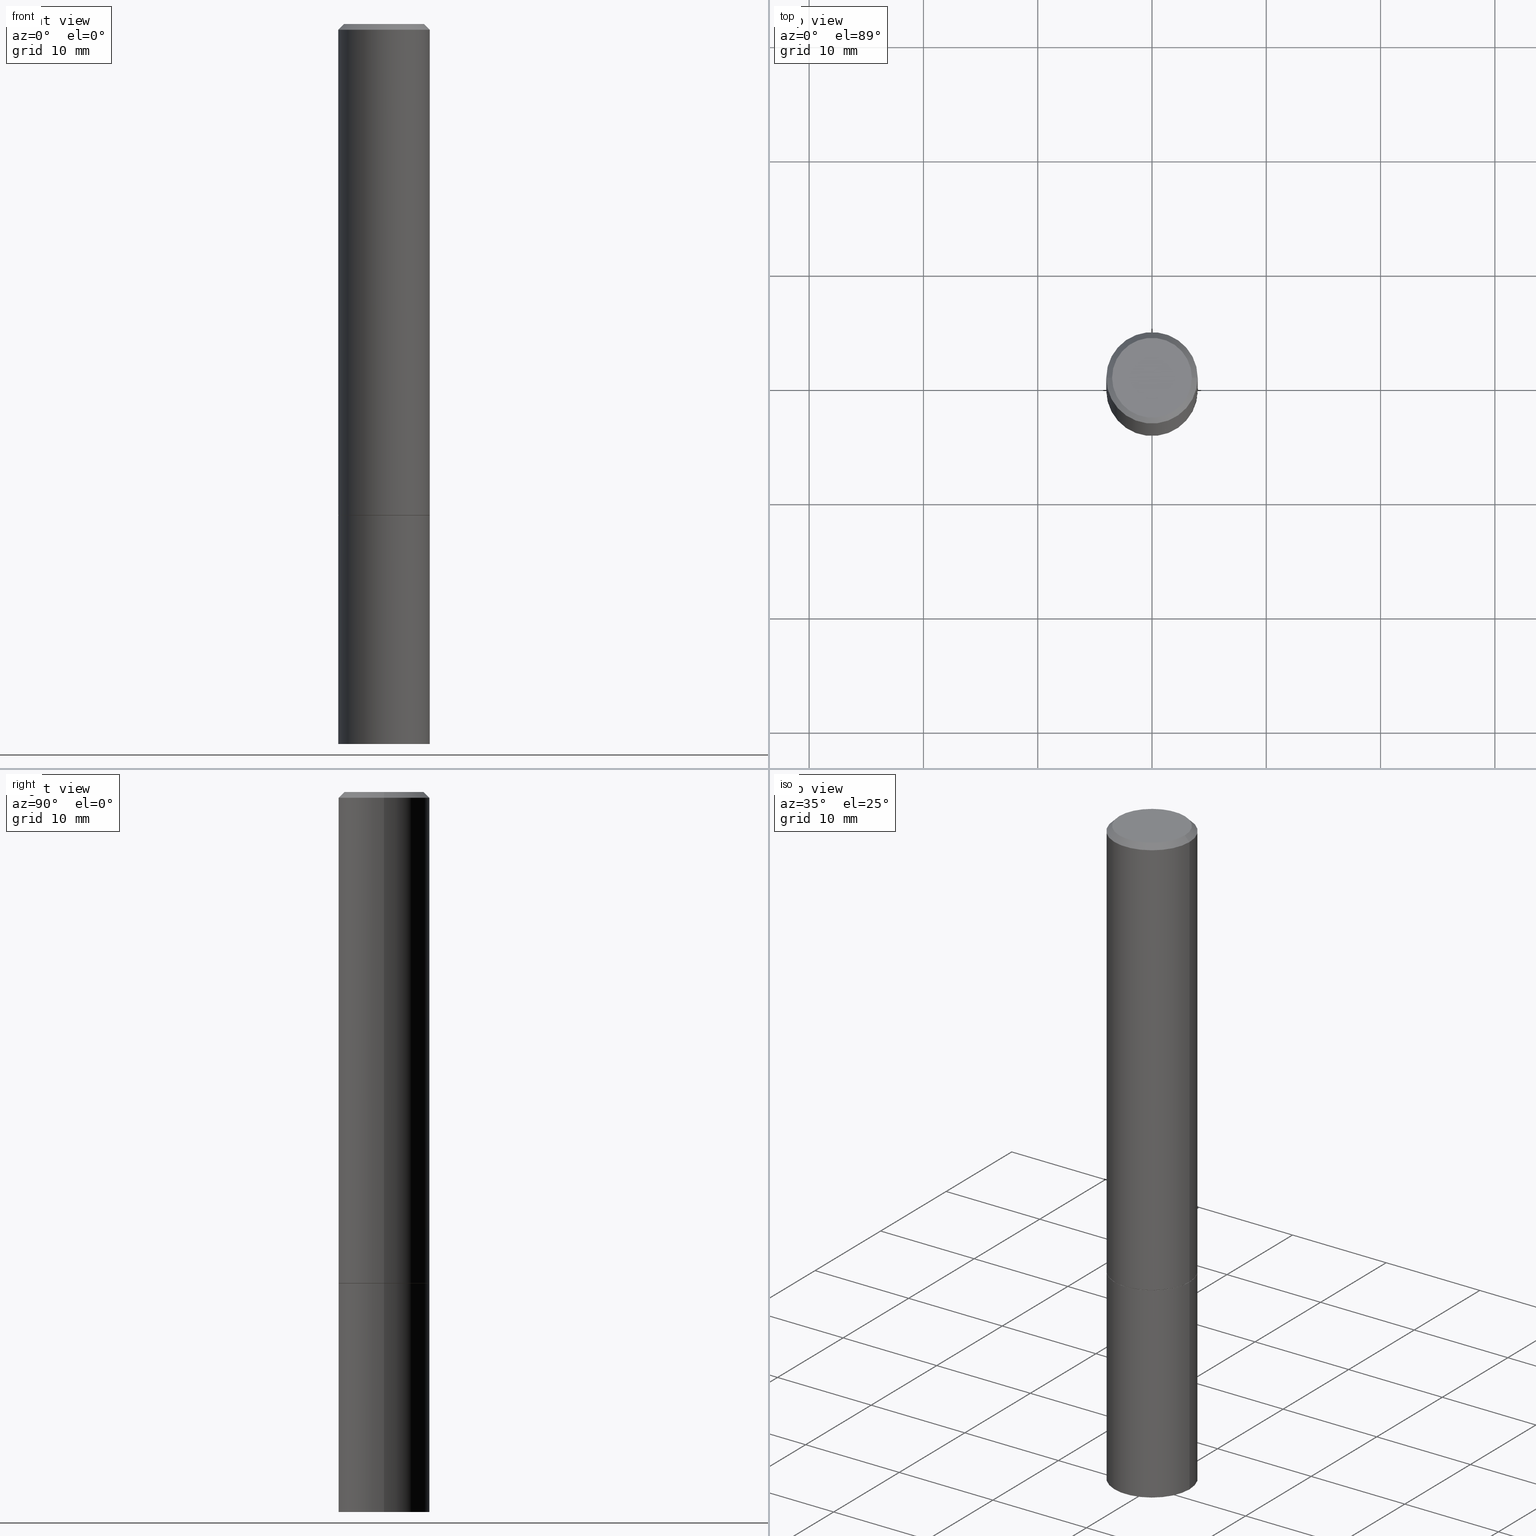
[diagram: canonical four-view strip — front | top / right | iso, engineering-drawing reading convention]
A machine part, canonical four-view strip (front | top / right | iso — engineering-drawing reading convention). The complete STEP part file that produces these views, byte-faithful:
ISO-10303-21;
HEADER;
FILE_DESCRIPTION (( 'STEP AP203' ),
    '1' );
FILE_NAME ('48511.STEP',
    '2024-02-28T11:20:03',
    ( '' ),
    ( '' ),
    'SwSTEP 2.0',
    'SolidWorks 2023',
    '' );
FILE_SCHEMA (( 'CONFIG_CONTROL_DESIGN' ));
ENDSEC;

DATA;
#1 = LINE ( 'NONE', #113, #77 ) ;
#2 = DIMENSIONAL_EXPONENTS ( 1.000000000000000000, 0.000000000000000000, 0.000000000000000000, 0.000000000000000000, 0.000000000000000000, 0.000000000000000000, 0.000000000000000000 ) ;
#3 = DATE_AND_TIME ( #335, #216 ) ;
#4 = UNCERTAINTY_MEASURE_WITH_UNIT (LENGTH_MEASURE( 1.000000000000000082E-05 ), #47, 'distance_accuracy_value', 'NONE');
#5 = CLOSED_SHELL ( 'NONE', ( #317, #245, #254, #306 ) ) ;
#6 = VECTOR ( 'NONE', #105, 39.37007874015748143 ) ;
#7 = CC_DESIGN_DATE_AND_TIME_ASSIGNMENT ( #310, #203, ( #104 ) ) ;
#8 = FACE_OUTER_BOUND ( 'NONE', #206, .T. ) ;
#9 = DIRECTION ( 'NONE',  ( -2.445468806185136597E-29, 3.491481338843145583E-15, 1.000000000000000000 ) ) ;
#10 = EDGE_CURVE ( 'NONE', #230, #295, #103, .T. ) ;
#11 = VECTOR ( 'NONE', #270, 39.37007874015748143 ) ;
#12 = LINE ( 'NONE', #182, #6 ) ;
#13 = CARTESIAN_POINT ( 'NONE',  ( 4.139934141990818918E-29, -5.910728758527562653E-15, -1.692900000000000293 ) ) ;
#14 = ADVANCED_BREP_SHAPE_REPRESENTATION ( '48511', ( #126, #122, #327 ), #301 ) ;
#15 = EDGE_CURVE ( 'NONE', #133, #358, #339, .T. ) ;
#16 = DIRECTION ( 'NONE',  ( -1.000000000000000000, 6.982962677686265922E-15, -4.876176775795935793E-29 ) ) ;
#17 = ORIENTED_EDGE ( 'NONE', *, *, #267, .T. ) ;
#18 = CIRCLE ( 'NONE', #221, 0.1374999999999998446 ) ;
#19 = PRODUCT_DEFINITION ( 'UNKNOWN', '', #205, #78 ) ;
#20 = VECTOR ( 'NONE', #265, 39.37007874015748143 ) ;
#21 = CARTESIAN_POINT ( 'NONE',  ( 9.601573681818602922E-16, 0.1374999999999998446, -4.779444278458817077E-16 ) ) ;
#22 = CARTESIAN_POINT ( 'NONE',  ( 0.1575000000000000011, -1.099816621735586889E-15, 7.679978421878598033E-30 ) ) ;
#23 = DIRECTION ( 'NONE',  ( 1.000000000000000000, -6.982962677686265922E-15, 4.876176775795935232E-29 ) ) ;
#24 = ORIENTED_EDGE ( 'NONE', *, *, #51, .F. ) ;
#25 = EDGE_CURVE ( 'NONE', #61, #312, #55, .T. ) ;
#26 = EDGE_CURVE ( 'NONE', #131, #242, #188, .T. ) ;
#27 =( NAMED_UNIT ( * ) SI_UNIT ( $, .STERADIAN. ) SOLID_ANGLE_UNIT ( ) );
#28 = EDGE_LOOP ( 'NONE', ( #74, #181, #363, #330 ) ) ;
#29 = CC_DESIGN_APPROVAL ( #320, ( #19 ) ) ;
#30 = ORIENTED_EDGE ( 'NONE', *, *, #274, .F. ) ;
#31 = COORDINATED_UNIVERSAL_TIME_OFFSET ( 5, 0, .BEHIND. ) ;
#32 = CARTESIAN_POINT ( 'NONE',  ( 4.890937612370279289E-31, -6.982962677686299005E-17, -0.02000000000000002470 ) ) ;
#33 = APPROVAL_DATE_TIME ( #202, #238 ) ;
#34 = DIRECTION ( 'NONE',  ( -2.445468806185136597E-29, 3.491481338843145583E-15, 1.000000000000000000 ) ) ;
#35 = AXIS2_PLACEMENT_3D ( 'NONE', #286, #83, #37 ) ;
#36 = CARTESIAN_POINT ( 'NONE',  ( 4.890937612370279289E-31, -6.982962677686299005E-17, -0.02000000000000002470 ) ) ;
#37 = DIRECTION ( 'NONE',  ( 1.000000000000000000, -6.982962677686265922E-15, 0.000000000000000000 ) ) ;
#38 = FACE_OUTER_BOUND ( 'NONE', #127, .T. ) ;
#39 = AXIS2_PLACEMENT_3D ( 'NONE', #40, #102, #154 ) ;
#40 = CARTESIAN_POINT ( 'NONE',  ( 1.099816621735647434E-15, 0.1574999999999913136, -2.480300000000001059 ) ) ;
#41 = LINE ( 'NONE', #184, #223 ) ;
#42 = CARTESIAN_POINT ( 'NONE',  ( 1.099816621735628304E-15, 0.1574999999999940892, -1.692900000000000960 ) ) ;
#43 = ORIENTED_EDGE ( 'NONE', *, *, #117, .F. ) ;
#44 = APPROVAL_PERSON_ORGANIZATION ( #232, #343, #260 ) ;
#45 = DIRECTION ( 'NONE',  ( -2.445468806185136597E-29, 3.491481338843145583E-15, 1.000000000000000000 ) ) ;
#46 = ORIENTED_EDGE ( 'NONE', *, *, #267, .F. ) ;
#47 =( CONVERSION_BASED_UNIT ( 'INCH', #251 ) LENGTH_UNIT ( ) NAMED_UNIT ( #2 ) );
#48 = ORIENTED_EDGE ( 'NONE', *, *, #25, .T. ) ;
#49 = CARTESIAN_POINT ( 'NONE',  ( 0.000000000000000000, 0.000000000000000000, 0.000000000000000000 ) ) ;
#50 = CC_DESIGN_APPROVAL ( #238, ( #104 ) ) ;
#51 = EDGE_CURVE ( 'NONE', #242, #131, #97, .T. ) ;
#52 = APPROVAL_STATUS ( 'not_yet_approved' ) ;
#53 = FACE_OUTER_BOUND ( 'NONE', #299, .T. ) ;
#54 = PERSON_AND_ORGANIZATION ( #304, #333 ) ;
#55 = CIRCLE ( 'NONE', #256, 0.1575000000000000011 ) ;
#56 = LOCAL_TIME ( 6, 20, 3.000000000000000000, #337 ) ;
#57 = CALENDAR_DATE ( 2024, 28, 2 ) ;
#58 = COORDINATED_UNIVERSAL_TIME_OFFSET ( 5, 0, .BEHIND. ) ;
#59 = CONICAL_SURFACE ( 'NONE', #240, 0.1565000000000000002, 0.7853981633972775267 ) ;
#60 = DIRECTION ( 'NONE',  ( 2.445468806185136597E-29, -3.491481338843145583E-15, -1.000000000000000000 ) ) ;
#61 = VERTEX_POINT ( 'NONE', #148 ) ;
#62 = DIRECTION ( 'NONE',  ( -1.000000000000000000, 6.982962677686265922E-15, -4.876176775795935793E-29 ) ) ;
#63 = ORIENTED_EDGE ( 'NONE', *, *, #273, .F. ) ;
#64 = AXIS2_PLACEMENT_3D ( 'NONE', #261, #231, #89 ) ;
#65 = CARTESIAN_POINT ( 'NONE',  ( 0.1574999999999998901, -1.099816621735586297E-15, 7.679978421878593829E-30 ) ) ;
#66 = CC_DESIGN_PERSON_AND_ORGANIZATION_ASSIGNMENT ( #171, #228, ( #19 ) ) ;
#67 = CARTESIAN_POINT ( 'NONE',  ( 0.1374999999999998446, -1.046838268059731308E-15, 4.268512490107428597E-18 ) ) ;
#68 = EDGE_LOOP ( 'NONE', ( #129, #347, #282, #30 ) ) ;
#69 = CARTESIAN_POINT ( 'NONE',  ( -0.1374999999999998446, 9.950721815702915469E-16, 4.268512490093574228E-18 ) ) ;
#70 = AXIS2_PLACEMENT_3D ( 'NONE', #259, #9, #315 ) ;
#71 = AXIS2_PLACEMENT_3D ( 'NONE', #218, #72, #23 ) ;
#72 = DIRECTION ( 'NONE',  ( -2.445468806185136597E-29, 3.491481338843145583E-15, 1.000000000000000000 ) ) ;
#73 = DIRECTION ( 'NONE',  ( -2.445468806185136597E-29, 3.491481338843145583E-15, 1.000000000000000000 ) ) ;
#74 = ORIENTED_EDGE ( 'NONE', *, *, #168, .F. ) ;
#75 = DIRECTION ( 'NONE',  ( 1.000000000000000000, -6.982962677686265922E-15, 4.876176775795935232E-29 ) ) ;
#76 = PERSON_AND_ORGANIZATION_ROLE ( 'design_owner' ) ;
#77 = VECTOR ( 'NONE', #199, 39.37007874015748143 ) ;
#78 = DESIGN_CONTEXT ( 'detailed design', #342, 'design' ) ;
#79 = CARTESIAN_POINT ( 'NONE',  ( 4.139934141990818918E-29, -5.910728758527562653E-15, -1.692900000000000293 ) ) ;
#80 = SECURITY_CLASSIFICATION_LEVEL ( 'unclassified' ) ;
#81 = VERTEX_POINT ( 'NONE', #280 ) ;
#82 = EDGE_CURVE ( 'NONE', #133, #312, #118, .T. ) ;
#83 = DIRECTION ( 'NONE',  ( -2.445468806185136597E-29, 3.491481338843145583E-15, 1.000000000000000000 ) ) ;
#84 = LOCAL_TIME ( 6, 20, 3.000000000000000000, #31 ) ;
#85 = ORIENTED_EDGE ( 'NONE', *, *, #200, .F. ) ;
#86 = DIRECTION ( 'NONE',  ( -2.445468806185136877E-29, 3.491481338843145188E-15, 1.000000000000000000 ) ) ;
#87 = ADVANCED_FACE ( 'NONE', ( #285 ), #165, .T. ) ;
#88 = COORDINATED_UNIVERSAL_TIME_OFFSET ( 5, 0, .BEHIND. ) ;
#89 = DIRECTION ( 'NONE',  ( 1.000000000000000000, -6.982962677686261977E-15, 0.000000000000000000 ) ) ;
#90 = ORIENTED_EDGE ( 'NONE', *, *, #168, .T. ) ;
#91 = LINE ( 'NONE', #326, #20 ) ;
#92 = ORIENTED_EDGE ( 'NONE', *, *, #341, .T. ) ;
#93 = ADVANCED_FACE ( 'NONE', ( #8 ), #149, .T. ) ;
#94 = CYLINDRICAL_SURFACE ( 'NONE', #198, 0.1574999999999998901 ) ;
#95 = ORIENTED_EDGE ( 'NONE', *, *, #82, .F. ) ;
#96 = PRODUCT_DEFINITION_SHAPE ( 'NONE', 'NONE',  #19 ) ;
#97 = CIRCLE ( 'NONE', #277, 0.1575000000000000011 ) ;
#98 = CARTESIAN_POINT ( 'NONE',  ( -0.1574999999999998346, 1.029986994958722802E-15, -0.02000000000000002470 ) ) ;
#99 = ORIENTED_EDGE ( 'NONE', *, *, #191, .F. ) ;
#100 = DIRECTION ( 'NONE',  ( -0.7071067811865469066, 2.468850131082249961E-15, -0.7071067811865482389 ) ) ;
#101 = EDGE_CURVE ( 'NONE', #295, #230, #239, .T. ) ;
#102 = DIRECTION ( 'NONE',  ( 2.438088387897960049E-29, -3.491481338843145188E-15, -1.000000000000000000 ) ) ;
#103 = CIRCLE ( 'NONE', #210, 0.1574999999999998346 ) ;
#104 = SECURITY_CLASSIFICATION ( '', '', #80 ) ;
#105 = DIRECTION ( 'NONE',  ( 0.7071067811865469066, -7.319954787623254468E-15, -0.7071067811865482389 ) ) ;
#106 = EDGE_LOOP ( 'NONE', ( #269, #90 ) ) ;
#107 = DIRECTION ( 'NONE',  ( 1.000000000000000000, 0.000000000000000000, 0.000000000000000000 ) ) ;
#108 = DIRECTION ( 'NONE',  ( -2.445468806185136597E-29, 3.491481338843145583E-15, 1.000000000000000000 ) ) ;
#109 = AXIS2_PLACEMENT_3D ( 'NONE', #21, #287, #62 ) ;
#110 = CARTESIAN_POINT ( 'NONE',  ( 6.065496279980994755E-29, -8.659921164732655335E-15, -2.480300000000000171 ) ) ;
#111 = VECTOR ( 'NONE', #209, 39.37007874015748143 ) ;
#112 = CARTESIAN_POINT ( 'NONE',  ( 4.139934141990818918E-29, -5.910728758527562653E-15, -1.692900000000000293 ) ) ;
#113 = CARTESIAN_POINT ( 'NONE',  ( -0.1574999999999998901, 1.119104808822157012E-15, -7.747322767151471379E-30 ) ) ;
#114 = CC_DESIGN_PERSON_AND_ORGANIZATION_ASSIGNMENT ( #54, #197, ( #205 ) ) ;
#115 = CALENDAR_DATE ( 2024, 28, 2 ) ;
#116 = PERSON_AND_ORGANIZATION_ROLE ( 'creator' ) ;
#117 = EDGE_CURVE ( 'NONE', #242, #230, #1, .T. ) ;
#118 = LINE ( 'NONE', #344, #351 ) ;
#119 = DATE_AND_TIME ( #146, #247 ) ;
#120 = VERTEX_POINT ( 'NONE', #69 ) ;
#121 = COORDINATED_UNIVERSAL_TIME_OFFSET ( 5, 0, .BEHIND. ) ;
#122 = MANIFOLD_SOLID_BREP ( 'Body-Move/Copy2[2]', #288 ) ;
#123 = AXIS2_PLACEMENT_3D ( 'NONE', #112, #195, #224 ) ;
#124 = PLANE ( 'NONE',  #109 ) ;
#125 = LINE ( 'NONE', #22, #174 ) ;
#126 = MANIFOLD_SOLID_BREP ( 'Body-Move/Copy2[1]', #5 ) ;
#127 = EDGE_LOOP ( 'NONE', ( #43, #360, #316, #185 ) ) ;
#128 = CARTESIAN_POINT ( 'NONE',  ( 0.000000000000000000, 0.000000000000000000, 0.000000000000000000 ) ) ;
#129 = ORIENTED_EDGE ( 'NONE', *, *, #26, .T. ) ;
#130 = CARTESIAN_POINT ( 'NONE',  ( -0.1575000000000000011, -1.869428643160630319E-15, -1.691899999999999959 ) ) ;
#131 = VERTEX_POINT ( 'NONE', #325 ) ;
#132 = CARTESIAN_POINT ( 'NONE',  ( -1.043851414335219820E-46, 1.490343170380447200E-32, 4.268512490100411279E-18 ) ) ;
#133 = VERTEX_POINT ( 'NONE', #186 ) ;
#134 = FACE_OUTER_BOUND ( 'NONE', #142, .T. ) ;
#135 = CARTESIAN_POINT ( 'NONE',  ( 4.139934141990818918E-29, -5.910728758527562653E-15, -1.692900000000000293 ) ) ;
#136 = VERTEX_POINT ( 'NONE', #67 ) ;
#137 = PRODUCT_RELATED_PRODUCT_CATEGORY ( 'detail', '', ( #145 ) ) ;
#138 = CYLINDRICAL_SURFACE ( 'NONE', #71, 0.1575000000000000011 ) ;
#139 = CARTESIAN_POINT ( 'NONE',  ( 0.1574999999999998346, -1.150358061425878091E-15, -0.02000000000000002470 ) ) ;
#140 = CARTESIAN_POINT ( 'NONE',  ( 0.000000000000000000, 0.000000000000000000, 0.000000000000000000 ) ) ;
#141 = APPROVAL_PERSON_ORGANIZATION ( #302, #320, #276 ) ;
#142 = EDGE_LOOP ( 'NONE', ( #266, #271, #305, #187 ) ) ;
#143 = APPROVAL_ROLE ( '' ) ;
#144 = DIRECTION ( 'NONE',  ( -1.000000000000000000, 6.982962677686265922E-15, 0.000000000000000000 ) ) ;
#145 = PRODUCT ( '48511', '48511', '', ( #364 ) ) ;
#146 = CALENDAR_DATE ( 2024, 28, 2 ) ;
#147 = DIRECTION ( 'NONE',  ( 1.000000000000000000, -6.982962677686268288E-15, 0.000000000000000000 ) ) ;
#148 = CARTESIAN_POINT ( 'NONE',  ( 0.1575000000000000011, -7.010545380263150133E-15, -1.692900000000000293 ) ) ;
#149 = CONICAL_SURFACE ( 'NONE', #262, 0.1574999999999998346, 0.7853981633974473908 ) ;
#150 = DIRECTION ( 'NONE',  ( 2.445468806185136597E-29, -3.491481338843145583E-15, -1.000000000000000000 ) ) ;
#151 = DIRECTION ( 'NONE',  ( 1.000000000000000000, -6.982962677686268288E-15, 0.000000000000000000 ) ) ;
#152 = EDGE_CURVE ( 'NONE', #358, #61, #125, .T. ) ;
#153 = APPROVAL_PERSON_ORGANIZATION ( #196, #238, #143 ) ;
#154 = DIRECTION ( 'NONE',  ( -1.000000000000000000, 6.982962677686265922E-15, -4.876176775795935793E-29 ) ) ;
#155 = DIRECTION ( 'NONE',  ( -2.445468806185136877E-29, 3.491481338843145188E-15, 1.000000000000000000 ) ) ;
#156 = EDGE_LOOP ( 'NONE', ( #170, #355 ) ) ;
#157 = DIRECTION ( 'NONE',  ( -2.445468806185136597E-29, 3.491481338843145583E-15, 1.000000000000000000 ) ) ;
#158 = AXIS2_PLACEMENT_3D ( 'NONE', #140, #329, #75 ) ;
#159 = DIRECTION ( 'NONE',  ( 2.438088387897960049E-29, -3.491481338843145188E-15, -1.000000000000000000 ) ) ;
#160 = PLANE ( 'NONE',  #123 ) ;
#161 = EDGE_CURVE ( 'NONE', #292, #81, #332, .T. ) ;
#162 = CARTESIAN_POINT ( 'NONE',  ( 0.1565000000000000002, -7.003562417585463330E-15, -1.692900000000000293 ) ) ;
#163 = FACE_OUTER_BOUND ( 'NONE', #309, .T. ) ;
#164 = FACE_OUTER_BOUND ( 'NONE', #234, .T. ) ;
#165 = CONICAL_SURFACE ( 'NONE', #300, 0.1574999999999998346, 0.7853981633974473908 ) ;
#166 = APPROVAL_STATUS ( 'not_yet_approved' ) ;
#167 = ORIENTED_EDGE ( 'NONE', *, *, #258, .T. ) ;
#168 = EDGE_CURVE ( 'NONE', #136, #120, #18, .T. ) ;
#169 = PERSON_AND_ORGANIZATION ( #304, #333 ) ;
#170 = ORIENTED_EDGE ( 'NONE', *, *, #341, .F. ) ;
#171 = PERSON_AND_ORGANIZATION ( #304, #333 ) ;
#172 = AXIS2_PLACEMENT_3D ( 'NONE', #323, #297, #214 ) ;
#173 = DIRECTION ( 'NONE',  ( 1.000000000000000000, -6.982962677686268288E-15, 0.000000000000000000 ) ) ;
#174 = VECTOR ( 'NONE', #155, 39.37007874015748143 ) ;
#175 = CC_DESIGN_APPROVAL ( #343, ( #205 ) ) ;
#176 = APPROVAL_STATUS ( 'not_yet_approved' ) ;
#177 = DIRECTION ( 'NONE',  ( -1.000000000000000000, 6.982962677686265922E-15, 0.000000000000000000 ) ) ;
#178 = DIRECTION ( 'NONE',  ( -2.445468806185136597E-29, 3.491481338843145583E-15, 1.000000000000000000 ) ) ;
#179 = CC_DESIGN_PERSON_AND_ORGANIZATION_ASSIGNMENT ( #169, #340, ( #104 ) ) ;
#180 = DIRECTION ( 'NONE',  ( -2.445468806185136597E-29, 3.491481338843145583E-15, 1.000000000000000000 ) ) ;
#181 = ORIENTED_EDGE ( 'NONE', *, *, #291, .T. ) ;
#182 = CARTESIAN_POINT ( 'NONE',  ( 0.1574999999999998346, -1.150358061425878091E-15, -0.02000000000000002470 ) ) ;
#183 = ADVANCED_FACE ( 'NONE', ( #352 ), #124, .F. ) ;
#184 = CARTESIAN_POINT ( 'NONE',  ( -0.1574999999999998346, 1.029986994958722802E-15, -0.02000000000000002470 ) ) ;
#185 = ORIENTED_EDGE ( 'NONE', *, *, #10, .F. ) ;
#186 = CARTESIAN_POINT ( 'NONE',  ( -0.1575000000000000011, -6.166220152807950602E-15, -2.480300000000000171 ) ) ;
#187 = ORIENTED_EDGE ( 'NONE', *, *, #258, .F. ) ;
#188 = CIRCLE ( 'NONE', #70, 0.1575000000000000011 ) ;
#189 = ORIENTED_EDGE ( 'NONE', *, *, #291, .F. ) ;
#190 =( LENGTH_UNIT ( ) NAMED_UNIT ( * ) SI_UNIT ( $, .METRE. ) );
#191 = EDGE_CURVE ( 'NONE', #312, #61, #361, .T. ) ;
#192 = ORIENTED_EDGE ( 'NONE', *, *, #82, .T. ) ;
#193 = APPLICATION_PROTOCOL_DEFINITION ( 'international standard', 'config_control_design', 1994, #342 ) ;
#194 = CC_DESIGN_PERSON_AND_ORGANIZATION_ASSIGNMENT ( #331, #76, ( #145 ) ) ;
#195 = DIRECTION ( 'NONE',  ( -2.438088387897960049E-29, 3.491481338843145188E-15, 1.000000000000000000 ) ) ;
#196 = PERSON_AND_ORGANIZATION ( #304, #333 ) ;
#197 = PERSON_AND_ORGANIZATION_ROLE ( 'design_supplier' ) ;
#198 = AXIS2_PLACEMENT_3D ( 'NONE', #236, #348, #215 ) ;
#199 = DIRECTION ( 'NONE',  ( -2.445468806185136877E-29, 3.491481338843145188E-15, 1.000000000000000000 ) ) ;
#200 = EDGE_CURVE ( 'NONE', #120, #136, #257, .T. ) ;
#201 = DIRECTION ( 'NONE',  ( 1.000000000000000000, -6.982962677686265922E-15, 0.000000000000000000 ) ) ;
#202 = DATE_AND_TIME ( #57, #84 ) ;
#203 = DATE_TIME_ROLE ( 'classification_date' ) ;
#204 = DIRECTION ( 'NONE',  ( -2.445468806185136597E-29, 3.491481338843145583E-15, 1.000000000000000000 ) ) ;
#205 = PRODUCT_DEFINITION_FORMATION_WITH_SPECIFIED_SOURCE ( 'ANY', '', #145, .NOT_KNOWN. ) ;
#206 = EDGE_LOOP ( 'NONE', ( #189, #85, #233, #298 ) ) ;
#207 = CARTESIAN_POINT ( 'NONE',  ( -1.043851414335219820E-46, 1.490343170380447200E-32, 4.268512490100411279E-18 ) ) ;
#208 = EDGE_LOOP ( 'NONE', ( #48, #211 ) ) ;
#209 = DIRECTION ( 'NONE',  ( -0.7071067811864267805, 7.493145998869918709E-15, 0.7071067811866682540 ) ) ;
#210 = AXIS2_PLACEMENT_3D ( 'NONE', #32, #34, #201 ) ;
#211 = ORIENTED_EDGE ( 'NONE', *, *, #191, .T. ) ;
#212 = CIRCLE ( 'NONE', #366, 0.1565000000000000002 ) ;
#213 = FACE_OUTER_BOUND ( 'NONE', #156, .T. ) ;
#214 = DIRECTION ( 'NONE',  ( 1.000000000000000000, -6.982962677686267499E-15, 0.000000000000000000 ) ) ;
#215 = DIRECTION ( 'NONE',  ( 1.000000000000000000, -6.982962677686266711E-15, 4.876176775795935793E-29 ) ) ;
#216 = LOCAL_TIME ( 6, 20, 3.000000000000000000, #121 ) ;
#217 = ADVANCED_FACE ( 'NONE', ( #293 ), #289, .T. ) ;
#218 = CARTESIAN_POINT ( 'NONE',  ( 0.000000000000000000, 0.000000000000000000, 0.000000000000000000 ) ) ;
#219 = EDGE_LOOP ( 'NONE', ( #92, #192, #338, #319 ) ) ;
#220 = APPLICATION_PROTOCOL_DEFINITION ( 'international standard', 'config_control_design', 1994, #284 ) ;
#221 = AXIS2_PLACEMENT_3D ( 'NONE', #207, #272, #318 ) ;
#222 = AXIS2_PLACEMENT_3D ( 'NONE', #42, #159, #16 ) ;
#223 = VECTOR ( 'NONE', #100, 39.37007874015748143 ) ;
#224 = DIRECTION ( 'NONE',  ( 1.000000000000000000, -6.982962677686265922E-15, 4.876176775795935793E-29 ) ) ;
#225 = CARTESIAN_POINT ( 'NONE',  ( -0.1575000000000000011, -6.166220152807950602E-15, -1.692900000000000293 ) ) ;
#226 = ORIENTED_EDGE ( 'NONE', *, *, #152, .T. ) ;
#227 = EDGE_CURVE ( 'NONE', #120, #230, #41, .T. ) ;
#228 = PERSON_AND_ORGANIZATION_ROLE ( 'creator' ) ;
#229 = AXIS2_PLACEMENT_3D ( 'NONE', #268, #180, #151 ) ;
#230 = VERTEX_POINT ( 'NONE', #98 ) ;
#231 = DIRECTION ( 'NONE',  ( -2.445468806185136597E-29, 3.491481338843145583E-15, 1.000000000000000000 ) ) ;
#232 = PERSON_AND_ORGANIZATION ( #304, #333 ) ;
#233 = ORIENTED_EDGE ( 'NONE', *, *, #227, .T. ) ;
#234 = EDGE_LOOP ( 'NONE', ( #349, #46 ) ) ;
#235 = AXIS2_PLACEMENT_3D ( 'NONE', #135, #73, #362 ) ;
#236 = CARTESIAN_POINT ( 'NONE',  ( 0.000000000000000000, 0.000000000000000000, 0.000000000000000000 ) ) ;
#237 = DIRECTION ( 'NONE',  ( 1.000000000000000000, -6.982962677686267499E-15, 0.000000000000000000 ) ) ;
#238 = APPROVAL ( #166, 'UNSPECIFIED' ) ;
#239 = CIRCLE ( 'NONE', #35, 0.1574999999999998346 ) ;
#240 = AXIS2_PLACEMENT_3D ( 'NONE', #79, #108, #303 ) ;
#241 = PLANE ( 'NONE',  #222 ) ;
#242 = VERTEX_POINT ( 'NONE', #130 ) ;
#243 = DIRECTION ( 'NONE',  ( 1.000000000000000000, -6.982962677686265922E-15, 4.876173381029105647E-29 ) ) ;
#244 = ORIENTED_EDGE ( 'NONE', *, *, #15, .T. ) ;
#245 = ADVANCED_FACE ( 'NONE', ( #213 ), #359, .T. ) ;
#246 =( NAMED_UNIT ( * ) PLANE_ANGLE_UNIT ( ) SI_UNIT ( $, .RADIAN. ) );
#247 = LOCAL_TIME ( 6, 20, 3.000000000000000000, #58 ) ;
#248 = ADVANCED_FACE ( 'NONE', ( #38 ), #94, .T. ) ;
#249 = DIRECTION ( 'NONE',  ( 0.000000000000000000, 0.000000000000000000, 1.000000000000000000 ) ) ;
#250 = CYLINDRICAL_SURFACE ( 'NONE', #158, 0.1575000000000000011 ) ;
#251 = LENGTH_MEASURE_WITH_UNIT ( LENGTH_MEASURE( 0.02539999999999999897 ), #190 );
#252 = SHAPE_DEFINITION_REPRESENTATION ( #96, #14 ) ;
#253 = CARTESIAN_POINT ( 'NONE',  ( 4.890937612370279289E-31, -6.982962677686299005E-17, -0.02000000000000002470 ) ) ;
#254 = ADVANCED_FACE ( 'NONE', ( #294 ), #241, .F. ) ;
#255 = CARTESIAN_POINT ( 'NONE',  ( 4.139934141990818918E-29, -5.910728758527562653E-15, -1.692900000000000293 ) ) ;
#256 = AXIS2_PLACEMENT_3D ( 'NONE', #255, #204, #147 ) ;
#257 = CIRCLE ( 'NONE', #353, 0.1374999999999998446 ) ;
#258 = EDGE_CURVE ( 'NONE', #292, #131, #91, .T. ) ;
#259 = CARTESIAN_POINT ( 'NONE',  ( 4.137488673184632754E-29, -5.907237277188718068E-15, -1.691899999999999959 ) ) ;
#260 = APPROVAL_ROLE ( '' ) ;
#261 = CARTESIAN_POINT ( 'NONE',  ( 6.065496279980994755E-29, -8.659921164732655335E-15, -2.480300000000000171 ) ) ;
#262 = AXIS2_PLACEMENT_3D ( 'NONE', #253, #60, #177 ) ;
#263 = CARTESIAN_POINT ( 'NONE',  ( -0.1565000000000000002, -4.798729377063006057E-15, -1.692900000000000293 ) ) ;
#264 = LOCAL_TIME ( 6, 20, 3.000000000000000000, #88 ) ;
#265 = DIRECTION ( 'NONE',  ( 0.7071067811864267805, -2.468850131080992517E-15, 0.7071067811866682540 ) ) ;
#266 = ORIENTED_EDGE ( 'NONE', *, *, #161, .T. ) ;
#267 = EDGE_CURVE ( 'NONE', #81, #292, #212, .T. ) ;
#268 = CARTESIAN_POINT ( 'NONE',  ( 4.139934141990818918E-29, -5.910728758527562653E-15, -1.692900000000000293 ) ) ;
#269 = ORIENTED_EDGE ( 'NONE', *, *, #200, .T. ) ;
#270 = DIRECTION ( 'NONE',  ( -2.445468806185136877E-29, 3.491481338843145188E-15, 1.000000000000000000 ) ) ;
#271 = ORIENTED_EDGE ( 'NONE', *, *, #273, .T. ) ;
#272 = DIRECTION ( 'NONE',  ( -2.445468806185136597E-29, 3.491481338843145583E-15, 1.000000000000000000 ) ) ;
#273 = EDGE_CURVE ( 'NONE', #81, #242, #350, .T. ) ;
#274 = EDGE_CURVE ( 'NONE', #131, #295, #321, .T. ) ;
#275 = CARTESIAN_POINT ( 'NONE',  ( 0.1575000000000000011, -9.759737786468242027E-15, -2.480300000000000171 ) ) ;
#276 = APPROVAL_ROLE ( '' ) ;
#277 = AXIS2_PLACEMENT_3D ( 'NONE', #311, #346, #173 ) ;
#278 = AXIS2_PLACEMENT_3D ( 'NONE', #110, #365, #328 ) ;
#279 = APPROVAL_DATE_TIME ( #283, #320 ) ;
#280 = CARTESIAN_POINT ( 'NONE',  ( -0.1565000000000000002, -4.793430922714782866E-15, -1.692900000000000293 ) ) ;
#281 = DATE_TIME_ROLE ( 'creation_date' ) ;
#282 = ORIENTED_EDGE ( 'NONE', *, *, #101, .F. ) ;
#283 = DATE_AND_TIME ( #115, #56 ) ;
#284 = APPLICATION_CONTEXT ( 'configuration controlled 3d designs of mechanical parts and assemblies' ) ;
#285 = FACE_OUTER_BOUND ( 'NONE', #28, .T. ) ;
#286 = CARTESIAN_POINT ( 'NONE',  ( 4.890937612370279289E-31, -6.982962677686299005E-17, -0.02000000000000002470 ) ) ;
#287 = DIRECTION ( 'NONE',  ( 2.438088387897960049E-29, -3.491481338843145188E-15, -1.000000000000000000 ) ) ;
#288 = CLOSED_SHELL ( 'NONE', ( #324, #217, #87, #93, #248, #354, #296, #183 ) ) ;
#289 = CYLINDRICAL_SURFACE ( 'NONE', #308, 0.1574999999999998901 ) ;
#290 = CC_DESIGN_SECURITY_CLASSIFICATION ( #104, ( #205 ) ) ;
#291 = EDGE_CURVE ( 'NONE', #136, #295, #12, .T. ) ;
#292 = VERTEX_POINT ( 'NONE', #162 ) ;
#293 = FACE_OUTER_BOUND ( 'NONE', #68, .T. ) ;
#294 = FACE_OUTER_BOUND ( 'NONE', #208, .T. ) ;
#295 = VERTEX_POINT ( 'NONE', #139 ) ;
#296 = ADVANCED_FACE ( 'NONE', ( #164 ), #160, .F. ) ;
#297 = DIRECTION ( 'NONE',  ( -2.445468806185136597E-29, 3.491481338843145583E-15, 1.000000000000000000 ) ) ;
#298 = ORIENTED_EDGE ( 'NONE', *, *, #10, .T. ) ;
#299 = EDGE_LOOP ( 'NONE', ( #63, #17, #167, #24 ) ) ;
#300 = AXIS2_PLACEMENT_3D ( 'NONE', #36, #150, #144 ) ;
#301 =( GEOMETRIC_REPRESENTATION_CONTEXT ( 3 ) GLOBAL_UNCERTAINTY_ASSIGNED_CONTEXT ( ( #4 ) ) GLOBAL_UNIT_ASSIGNED_CONTEXT ( ( #47, #246, #27 ) ) REPRESENTATION_CONTEXT ( 'NONE', 'WORKASPACE' ) );
#302 = PERSON_AND_ORGANIZATION ( #304, #333 ) ;
#303 = DIRECTION ( 'NONE',  ( 1.000000000000000000, -6.982962677686267499E-15, 0.000000000000000000 ) ) ;
#304 = PERSON ( 'UNSPECIFIED', 'UNSPECIFIED', 'UNSPECIFIED', ('UNSPECIFIED'), ('UNSPECIFIED'), ('UNSPECIFIED') ) ;
#305 = ORIENTED_EDGE ( 'NONE', *, *, #26, .F. ) ;
#306 = ADVANCED_FACE ( 'NONE', ( #163 ), #250, .T. ) ;
#307 = CALENDAR_DATE ( 2024, 28, 2 ) ;
#308 = AXIS2_PLACEMENT_3D ( 'NONE', #128, #45, #356 ) ;
#309 = EDGE_LOOP ( 'NONE', ( #95, #244, #226, #99 ) ) ;
#310 = DATE_AND_TIME ( #307, #264 ) ;
#311 = CARTESIAN_POINT ( 'NONE',  ( 4.137488673184632754E-29, -5.907237277188718068E-15, -1.691899999999999959 ) ) ;
#312 = VERTEX_POINT ( 'NONE', #225 ) ;
#313 = CONICAL_SURFACE ( 'NONE', #235, 0.1565000000000000002, 0.7853981633972775267 ) ;
#314 = PERSON_AND_ORGANIZATION ( #304, #333 ) ;
#315 = DIRECTION ( 'NONE',  ( 1.000000000000000000, -6.982962677686268288E-15, 0.000000000000000000 ) ) ;
#316 = ORIENTED_EDGE ( 'NONE', *, *, #274, .T. ) ;
#317 = ADVANCED_FACE ( 'NONE', ( #334 ), #138, .T. ) ;
#318 = DIRECTION ( 'NONE',  ( 1.000000000000000000, -6.982962677686265922E-15, 4.876173381029105647E-29 ) ) ;
#319 = ORIENTED_EDGE ( 'NONE', *, *, #152, .F. ) ;
#320 = APPROVAL ( #52, 'UNSPECIFIED' ) ;
#321 = LINE ( 'NONE', #65, #11 ) ;
#322 = CIRCLE ( 'NONE', #278, 0.1575000000000000011 ) ;
#323 = CARTESIAN_POINT ( 'NONE',  ( 4.139934141990818918E-29, -5.910728758527562653E-15, -1.692900000000000293 ) ) ;
#324 = ADVANCED_FACE ( 'NONE', ( #134 ), #59, .T. ) ;
#325 = CARTESIAN_POINT ( 'NONE',  ( 0.1575000000000000011, -7.007053898924305548E-15, -1.691899999999999959 ) ) ;
#326 = CARTESIAN_POINT ( 'NONE',  ( 0.1565000000000000002, -7.003562417585463330E-15, -1.692900000000000293 ) ) ;
#327 = AXIS2_PLACEMENT_3D ( 'NONE', #49, #249, #107 ) ;
#328 = DIRECTION ( 'NONE',  ( 1.000000000000000000, -6.982962677686261977E-15, 0.000000000000000000 ) ) ;
#329 = DIRECTION ( 'NONE',  ( -2.445468806185136597E-29, 3.491481338843145583E-15, 1.000000000000000000 ) ) ;
#330 = ORIENTED_EDGE ( 'NONE', *, *, #227, .F. ) ;
#331 = PERSON_AND_ORGANIZATION ( #304, #333 ) ;
#332 = CIRCLE ( 'NONE', #172, 0.1565000000000000002 ) ;
#333 = ORGANIZATION ( 'UNSPECIFIED', 'UNSPECIFIED', '' ) ;
#334 = FACE_OUTER_BOUND ( 'NONE', #219, .T. ) ;
#335 = CALENDAR_DATE ( 2024, 28, 2 ) ;
#336 = CC_DESIGN_DATE_AND_TIME_ASSIGNMENT ( #119, #281, ( #19 ) ) ;
#337 = COORDINATED_UNIVERSAL_TIME_OFFSET ( 5, 0, .BEHIND. ) ;
#338 = ORIENTED_EDGE ( 'NONE', *, *, #25, .F. ) ;
#339 = CIRCLE ( 'NONE', #64, 0.1575000000000000011 ) ;
#340 = PERSON_AND_ORGANIZATION_ROLE ( 'classification_officer' ) ;
#341 = EDGE_CURVE ( 'NONE', #358, #133, #322, .T. ) ;
#342 = APPLICATION_CONTEXT ( 'configuration controlled 3d designs of mechanical parts and assemblies' ) ;
#343 = APPROVAL ( #176, 'UNSPECIFIED' ) ;
#344 = CARTESIAN_POINT ( 'NONE',  ( -0.1575000000000000011, 1.119104808822157801E-15, -7.747322767151475583E-30 ) ) ;
#345 = APPROVAL_DATE_TIME ( #3, #343 ) ;
#346 = DIRECTION ( 'NONE',  ( -2.445468806185136597E-29, 3.491481338843145583E-15, 1.000000000000000000 ) ) ;
#347 = ORIENTED_EDGE ( 'NONE', *, *, #117, .T. ) ;
#348 = DIRECTION ( 'NONE',  ( -2.445468806185136597E-29, 3.491481338843145583E-15, 1.000000000000000000 ) ) ;
#349 = ORIENTED_EDGE ( 'NONE', *, *, #161, .F. ) ;
#350 = LINE ( 'NONE', #263, #111 ) ;
#351 = VECTOR ( 'NONE', #86, 39.37007874015748143 ) ;
#352 = FACE_OUTER_BOUND ( 'NONE', #106, .T. ) ;
#353 = AXIS2_PLACEMENT_3D ( 'NONE', #132, #178, #243 ) ;
#354 = ADVANCED_FACE ( 'NONE', ( #53 ), #313, .T. ) ;
#355 = ORIENTED_EDGE ( 'NONE', *, *, #15, .F. ) ;
#356 = DIRECTION ( 'NONE',  ( 1.000000000000000000, -6.982962677686266711E-15, 4.876176775795935793E-29 ) ) ;
#357 = CC_DESIGN_PERSON_AND_ORGANIZATION_ASSIGNMENT ( #314, #116, ( #205 ) ) ;
#358 = VERTEX_POINT ( 'NONE', #275 ) ;
#359 = PLANE ( 'NONE',  #39 ) ;
#360 = ORIENTED_EDGE ( 'NONE', *, *, #51, .T. ) ;
#361 = CIRCLE ( 'NONE', #229, 0.1575000000000000011 ) ;
#362 = DIRECTION ( 'NONE',  ( 1.000000000000000000, -6.982962677686267499E-15, 0.000000000000000000 ) ) ;
#363 = ORIENTED_EDGE ( 'NONE', *, *, #101, .T. ) ;
#364 = MECHANICAL_CONTEXT ( 'NONE', #284, 'mechanical' ) ;
#365 = DIRECTION ( 'NONE',  ( -2.445468806185136597E-29, 3.491481338843145583E-15, 1.000000000000000000 ) ) ;
#366 = AXIS2_PLACEMENT_3D ( 'NONE', #13, #157, #237 ) ;
ENDSEC;
END-ISO-10303-21;
